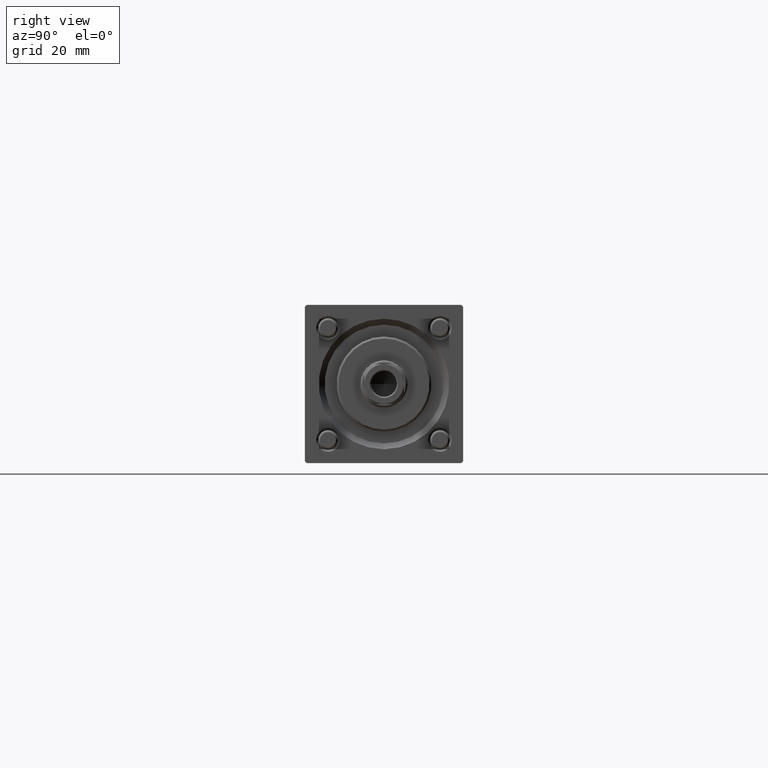
[diagram: clean part render]
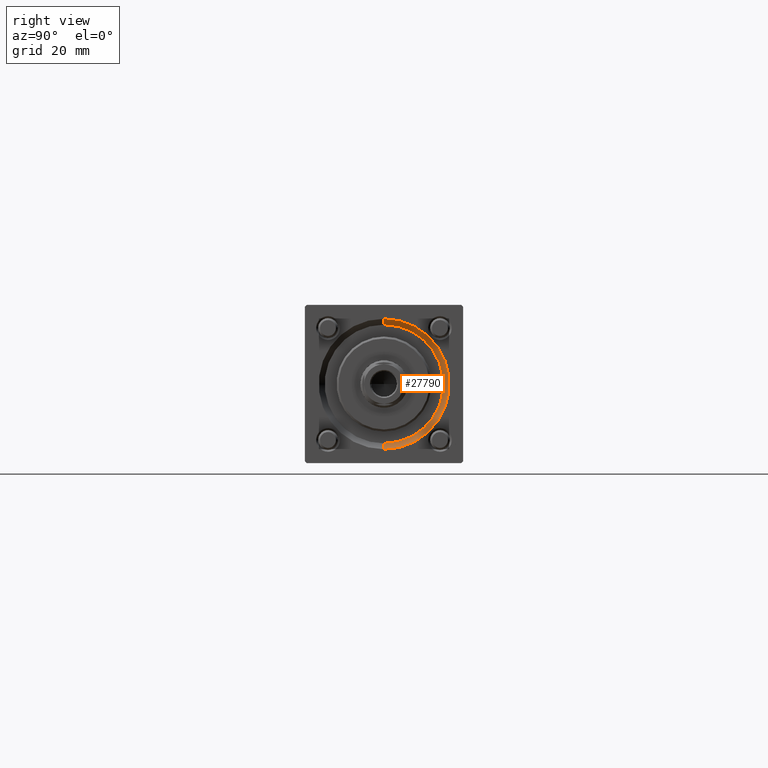
[diagram: same view with one face highlighted and labeled with its STEP entity id]
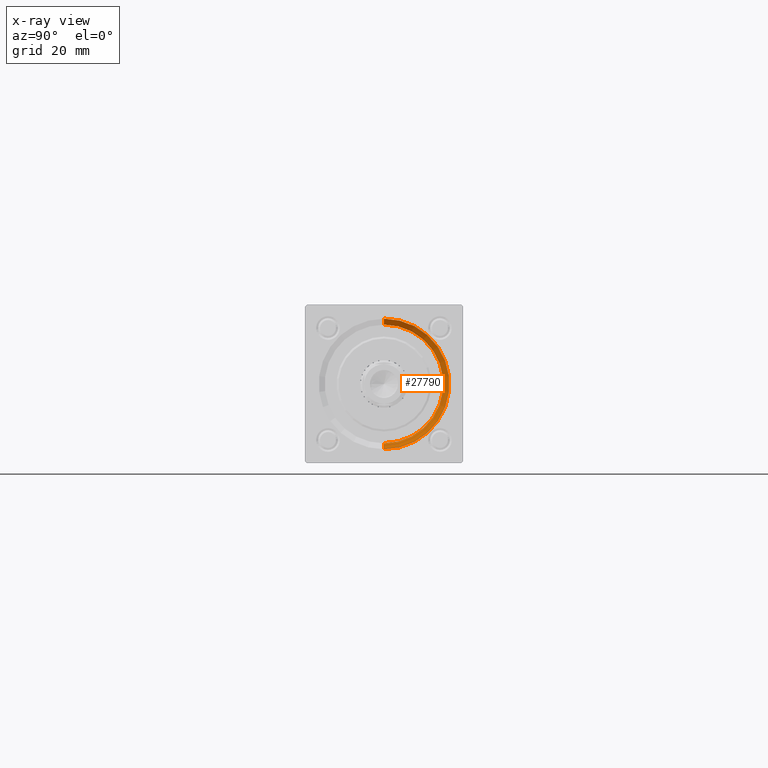
[diagram: x-ray of the same camera — body ghosted, the highlighted face saturated]
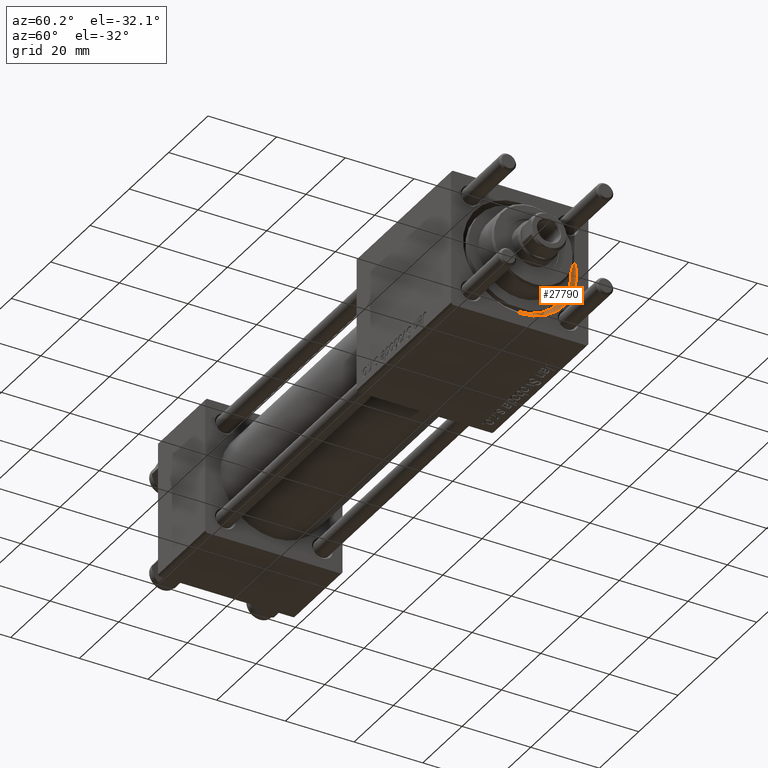
[diagram: same view with one face highlighted and labeled with its STEP entity id]
A machine part, right view. The second image highlights one B-rep face of the part: STEP entity #27790.
The next image is the same camera in x-ray: the body ghosted, the highlighted face saturated — about 0% of this face is hidden behind the body in this view.
A second angle (auxiliary view) of the same face is appended — the face is thin or edge-on in the first view.
In plain terms, the highlighted conical surface has half-angle 45 deg.
Its self-contained STEP definition (entity closure, byte-faithful):
#5906 = DIRECTION ( 'NONE',  ( 1.000000000000000000, 0.000000000000000000, 0.000000000000000000 ) ) ;
#6662 = DIRECTION ( 'NONE',  ( -1.000000000000000000, -0.000000000000000000, -0.000000000000000000 ) ) ;
#6858 = ORIENTED_EDGE ( 'NONE', *, *, #12311, .F. ) ;
#6996 = DIRECTION ( 'NONE',  ( 0.7071067811865507924, 8.659560562354892183E-17, 0.7071067811865441310 ) ) ;
#8488 = CARTESIAN_POINT ( 'NONE',  ( 147.5000000000000284, 0.000000000000000000, -15.00000000000000000 ) ) ;
#10604 = EDGE_CURVE ( 'NONE', #30822, #13146, #30426, .T. ) ;
#11242 = DIRECTION ( 'NONE',  ( 0.000000000000000000, 0.000000000000000000, 1.000000000000000000 ) ) ;
#11302 = CARTESIAN_POINT ( 'NONE',  ( 147.5000000000000284, 1.836970198721029589E-15, 15.00000000000000000 ) ) ;
#12311 = EDGE_CURVE ( 'NONE', #42640, #13146, #31470, .T. ) ;
#13146 = VERTEX_POINT ( 'NONE', #27536 ) ;
#18805 = CARTESIAN_POINT ( 'NONE',  ( 147.5000000000000284, 0.000000000000000000, 0.000000000000000000 ) ) ;
#19501 = VECTOR ( 'NONE', #29287, 1000.000000000000114 ) ;
#22104 = ORIENTED_EDGE ( 'NONE', *, *, #10604, .T. ) ;
#23544 = CONICAL_SURFACE ( 'NONE', #49194, 15.00000000000000000, 0.7853981633974437271 ) ;
#24683 = AXIS2_PLACEMENT_3D ( 'NONE', #18805, #5906, #36316 ) ;
#27536 = CARTESIAN_POINT ( 'NONE',  ( 149.0000000000000284, 0.000000000000000000, -16.49999999999998579 ) ) ;
#27790 = ADVANCED_FACE ( 'NONE', ( #55973 ), #23544, .F. ) ;
#28415 = EDGE_LOOP ( 'NONE', ( #40382, #46455, #22104, #6858 ) ) ;
#29287 = DIRECTION ( 'NONE',  ( 0.7071067811865507924, 0.000000000000000000, -0.7071067811865441310 ) ) ;
#30426 = LINE ( 'NONE', #37889, #19501 ) ;
#30822 = VERTEX_POINT ( 'NONE', #8488 ) ;
#31470 = CIRCLE ( 'NONE', #53461, 16.49999999999998579 ) ;
#32584 = CARTESIAN_POINT ( 'NONE',  ( 149.0000000000000284, 2.020667218593131128E-15, 16.49999999999998579 ) ) ;
#34786 = CIRCLE ( 'NONE', #24683, 15.00000000000000000 ) ;
#36024 = EDGE_CURVE ( 'NONE', #30822, #51821, #34786, .T. ) ;
#36316 = DIRECTION ( 'NONE',  ( 0.000000000000000000, 0.000000000000000000, 1.000000000000000000 ) ) ;
#37438 = VECTOR ( 'NONE', #6996, 1000.000000000000114 ) ;
#37889 = CARTESIAN_POINT ( 'NONE',  ( 147.5000000000000284, 0.000000000000000000, -15.00000000000000000 ) ) ;
#38458 = CARTESIAN_POINT ( 'NONE',  ( 147.5000000000000284, 0.000000000000000000, 0.000000000000000000 ) ) ;
#39411 = CARTESIAN_POINT ( 'NONE',  ( 147.5000000000000284, 1.836970198721029589E-15, 15.00000000000000000 ) ) ;
#40382 = ORIENTED_EDGE ( 'NONE', *, *, #53544, .F. ) ;
#42213 = CARTESIAN_POINT ( 'NONE',  ( 149.0000000000000284, 0.000000000000000000, 0.000000000000000000 ) ) ;
#42640 = VERTEX_POINT ( 'NONE', #32584 ) ;
#46455 = ORIENTED_EDGE ( 'NONE', *, *, #36024, .F. ) ;
#46854 = LINE ( 'NONE', #11302, #37438 ) ;
#49194 = AXIS2_PLACEMENT_3D ( 'NONE', #38458, #51074, #50781 ) ;
#50781 = DIRECTION ( 'NONE',  ( 0.000000000000000000, 0.000000000000000000, -1.000000000000000000 ) ) ;
#51074 = DIRECTION ( 'NONE',  ( 1.000000000000000000, 0.000000000000000000, 0.000000000000000000 ) ) ;
#51821 = VERTEX_POINT ( 'NONE', #39411 ) ;
#53461 = AXIS2_PLACEMENT_3D ( 'NONE', #42213, #6662, #11242 ) ;
#53544 = EDGE_CURVE ( 'NONE', #51821, #42640, #46854, .T. ) ;
#55973 = FACE_OUTER_BOUND ( 'NONE', #28415, .T. ) ;